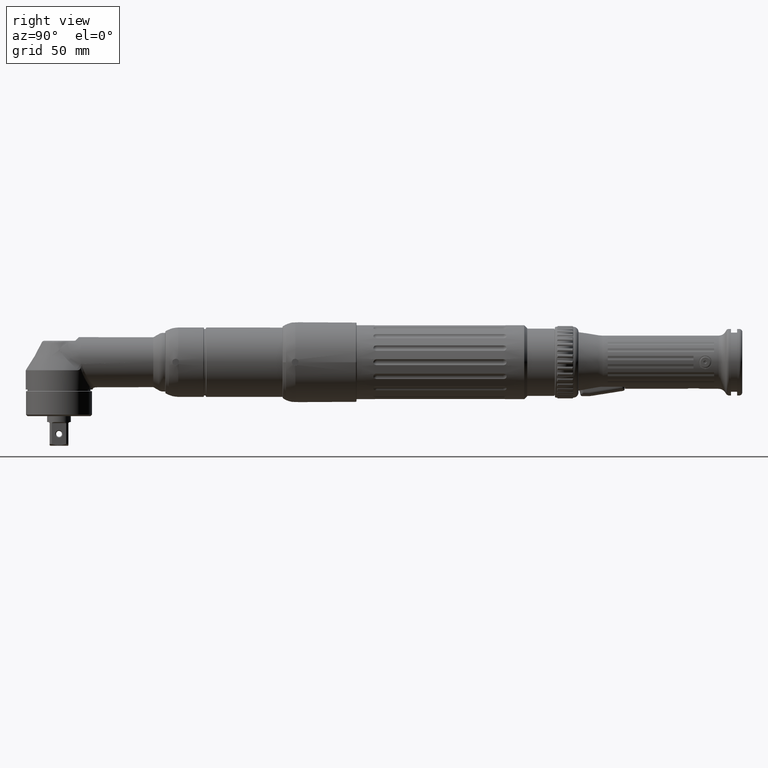
[diagram: clean part render]
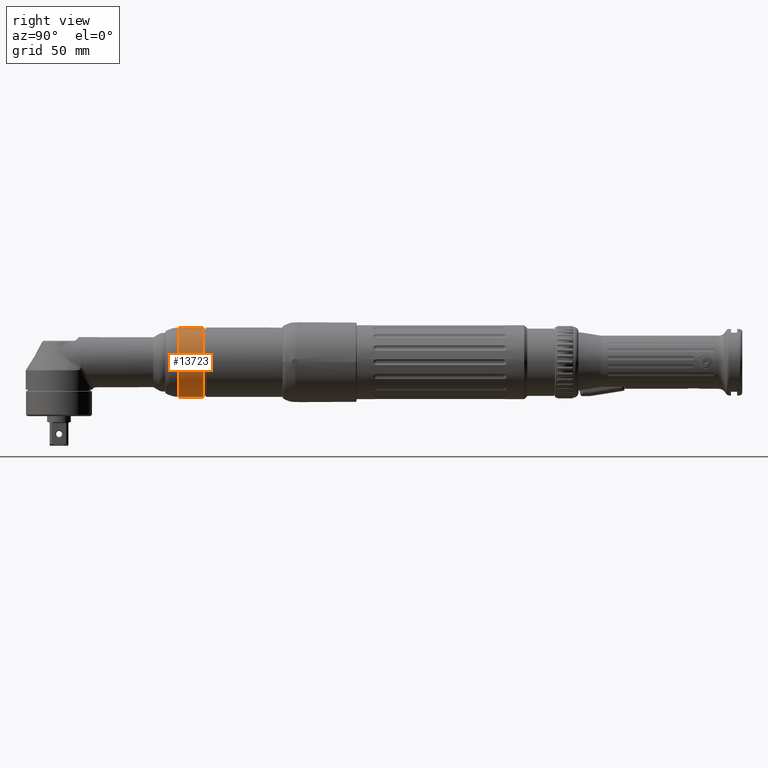
[diagram: same view with one face highlighted and labeled with its STEP entity id]
A machine part, right view. The second image highlights one B-rep face of the part: STEP entity #13723.
In plain terms, the highlighted cylindrical surface (bore or boss wall) has radius 23.5 mm, axis along (-0, 1, -0).
Its self-contained STEP definition (entity closure, byte-faithful):
#1785=B_SPLINE_CURVE_WITH_KNOTS('',3,(#20974,#20975,#20976,#20977,#20978,
#20979),.UNSPECIFIED.,.F.,.F.,(4,2,4),(-0.346790081006187,-0.260092696087759,
-0.182050218631956),.UNSPECIFIED.);
#1786=B_SPLINE_CURVE_WITH_KNOTS('',3,(#20980,#20981,#20982,#20983,#20984,
#20985),.UNSPECIFIED.,.F.,.F.,(4,2,4),(-0.511529943380419,-0.433487465924616,
-0.346790081006187),.UNSPECIFIED.);
#1788=B_SPLINE_CURVE_WITH_KNOTS('',3,(#21015,#21016,#21017,#21018,#21019,
#21020),.UNSPECIFIED.,.F.,.F.,(4,2,4),(-0.346790081006187,-0.260092696087759,
-0.182050218631957),.UNSPECIFIED.);
#1789=B_SPLINE_CURVE_WITH_KNOTS('',3,(#21022,#21023,#21024,#21025,#21026,
#21027),.UNSPECIFIED.,.F.,.F.,(4,2,4),(-0.511529943380418,-0.433487465924616,
-0.346790081006187),.UNSPECIFIED.);
#1792=B_SPLINE_CURVE_WITH_KNOTS('',3,(#21082,#21083,#21084,#21085,#21086,
#21087),.UNSPECIFIED.,.F.,.F.,(4,2,4),(-0.346790081006187,-0.260092696087759,
-0.182050218631957),.UNSPECIFIED.);
#1793=B_SPLINE_CURVE_WITH_KNOTS('',3,(#21088,#21089,#21090,#21091,#21092,
#21093),.UNSPECIFIED.,.F.,.F.,(4,2,4),(-0.511529943380418,-0.433487465924616,
-0.346790081006187),.UNSPECIFIED.);
#1795=B_SPLINE_CURVE_WITH_KNOTS('',3,(#21126,#21127,#21128,#21129,#21130,
#21131),.UNSPECIFIED.,.F.,.F.,(4,2,4),(-0.346790081006188,-0.260092696087759,
-0.182050218631957),.UNSPECIFIED.);
#1796=B_SPLINE_CURVE_WITH_KNOTS('',3,(#21132,#21133,#21134,#21135,#21136,
#21137),.UNSPECIFIED.,.F.,.F.,(4,2,4),(-0.511529943380418,-0.433487465924616,
-0.346790081006188),.UNSPECIFIED.);
#1916=CYLINDRICAL_SURFACE('',#14632,23.5);
#2201=FACE_BOUND('',#3364,.T.);
#2475=FACE_OUTER_BOUND('',#3363,.T.);
#3363=EDGE_LOOP('',(#8608,#8609,#8610,#8611,#8612,#8613,#8614,#8615,#8616,
#8617,#8618,#8619));
#3364=EDGE_LOOP('',(#8620));
#4489=CIRCLE('',#14621,23.5);
#4490=CIRCLE('',#14622,23.5);
#4491=CIRCLE('',#14623,23.5);
#4492=CIRCLE('',#14624,23.5);
#4496=CIRCLE('',#14633,23.5);
#5381=VERTEX_POINT('',#20943);
#5382=VERTEX_POINT('',#20944);
#5383=VERTEX_POINT('',#20973);
#5387=VERTEX_POINT('',#20996);
#5389=VERTEX_POINT('',#21014);
#5390=VERTEX_POINT('',#21021);
#5393=VERTEX_POINT('',#21051);
#5394=VERTEX_POINT('',#21052);
#5395=VERTEX_POINT('',#21081);
#5396=VERTEX_POINT('',#21095);
#5397=VERTEX_POINT('',#21096);
#5398=VERTEX_POINT('',#21125);
#5404=VERTEX_POINT('',#21187);
#6665=EDGE_CURVE('',#5383,#5381,#1785,.T.);
#6666=EDGE_CURVE('',#5382,#5383,#1786,.T.);
#6671=EDGE_CURVE('',#5389,#5387,#1788,.T.);
#6672=EDGE_CURVE('',#5390,#5389,#1789,.T.);
#6677=EDGE_CURVE('',#5395,#5393,#1792,.T.);
#6678=EDGE_CURVE('',#5394,#5395,#1793,.T.);
#6680=EDGE_CURVE('',#5398,#5396,#1795,.T.);
#6681=EDGE_CURVE('',#5397,#5398,#1796,.T.);
#6685=EDGE_CURVE('',#5390,#5381,#4489,.T.);
#6686=EDGE_CURVE('',#5382,#5393,#4490,.T.);
#6687=EDGE_CURVE('',#5394,#5396,#4491,.T.);
#6688=EDGE_CURVE('',#5397,#5387,#4492,.T.);
#6692=EDGE_CURVE('',#5404,#5404,#4496,.T.);
#8608=ORIENTED_EDGE('',*,*,#6688,.F.);
#8609=ORIENTED_EDGE('',*,*,#6681,.T.);
#8610=ORIENTED_EDGE('',*,*,#6680,.T.);
#8611=ORIENTED_EDGE('',*,*,#6687,.F.);
#8612=ORIENTED_EDGE('',*,*,#6678,.T.);
#8613=ORIENTED_EDGE('',*,*,#6677,.T.);
#8614=ORIENTED_EDGE('',*,*,#6686,.F.);
#8615=ORIENTED_EDGE('',*,*,#6666,.T.);
#8616=ORIENTED_EDGE('',*,*,#6665,.T.);
#8617=ORIENTED_EDGE('',*,*,#6685,.F.);
#8618=ORIENTED_EDGE('',*,*,#6672,.T.);
#8619=ORIENTED_EDGE('',*,*,#6671,.T.);
#8620=ORIENTED_EDGE('',*,*,#6692,.F.);
#13723=ADVANCED_FACE('',(#2475,#2201),#1916,.T.);
#14621=AXIS2_PLACEMENT_3D('',#21172,#16505,#16506);
#14622=AXIS2_PLACEMENT_3D('',#21173,#16507,#16508);
#14623=AXIS2_PLACEMENT_3D('',#21174,#16509,#16510);
#14624=AXIS2_PLACEMENT_3D('',#21175,#16511,#16512);
#14632=AXIS2_PLACEMENT_3D('',#21186,#16527,#16528);
#14633=AXIS2_PLACEMENT_3D('',#21188,#16529,#16530);
#16505=DIRECTION('center_axis',(3.46124277547592E-16,-1.,1.12588526286296E-18));
#16506=DIRECTION('ref_axis',(0.707106781186547,2.3844307900449E-16,-0.707106781186548));
#16507=DIRECTION('center_axis',(3.46124277547592E-16,-1.,1.12588526286296E-18));
#16508=DIRECTION('ref_axis',(0.707106781186547,2.3844307900449E-16,-0.707106781186548));
#16509=DIRECTION('center_axis',(3.46124277547592E-16,-1.,1.12588526286296E-18));
#16510=DIRECTION('ref_axis',(0.707106781186547,2.3844307900449E-16,-0.707106781186548));
#16511=DIRECTION('center_axis',(3.46124277547592E-16,-1.,1.12588526286296E-18));
#16512=DIRECTION('ref_axis',(0.707106781186547,2.3844307900449E-16,-0.707106781186548));
#16527=DIRECTION('center_axis',(-3.46124277547592E-16,1.,-1.12588526286296E-18));
#16528=DIRECTION('ref_axis',(-4.23019337988543E-16,1.24710048735305E-16,
-1.));
#16529=DIRECTION('center_axis',(-3.46124277547592E-16,1.,-1.12588526286296E-18));
#16530=DIRECTION('ref_axis',(3.61786998031175E-16,2.25694610214675E-18,
1.));
#20943=CARTESIAN_POINT('',(-1.56367712594626,80.6866872404908,-23.4479191794452));
#20944=CARTESIAN_POINT('',(1.56367712594622,80.6866872404908,-23.4479191794452));
#20973=CARTESIAN_POINT('',(-2.34011218331982E-14,81.3000000000001,-23.5));
#20974=CARTESIAN_POINT('Ctrl Pts',(-2.14411821630733E-14,81.3000000000001,
-23.5));
#20975=CARTESIAN_POINT('Ctrl Pts',(-0.288991283061449,81.3000000000001,
-23.5));
#20976=CARTESIAN_POINT('Ctrl Pts',(-0.597119438070671,81.2422071708595,
-23.4941232068965));
#20977=CARTESIAN_POINT('Ctrl Pts',(-1.13545525787978,81.0191449802081,-23.4739402612096));
#20978=CARTESIAN_POINT('Ctrl Pts',(-1.37072982928058,80.8655628887709,-23.4607863030462));
#20979=CARTESIAN_POINT('Ctrl Pts',(-1.56367712573371,80.6866872402605,-23.4479191794594));
#20980=CARTESIAN_POINT('Ctrl Pts',(1.56367712573367,80.6866872402605,-23.4479191794594));
#20981=CARTESIAN_POINT('Ctrl Pts',(1.37072982928054,80.8655628887709,-23.4607863030462));
#20982=CARTESIAN_POINT('Ctrl Pts',(1.13545525787974,81.0191449802081,-23.4739402612096));
#20983=CARTESIAN_POINT('Ctrl Pts',(0.597119438070625,81.2422071708595,-23.4941232068965));
#20984=CARTESIAN_POINT('Ctrl Pts',(0.288991283061403,81.3000000000001,-23.5));
#20985=CARTESIAN_POINT('Ctrl Pts',(-2.47024622979097E-14,81.3000000000001,
-23.5));
#20996=CARTESIAN_POINT('',(-23.4479191794452,80.6866872404907,1.56367712594624));
#21014=CARTESIAN_POINT('',(-23.5,81.3000000000001,4.81046796746673E-15));
#21015=CARTESIAN_POINT('Ctrl Pts',(-23.5,81.3000000000001,6.73072708679001E-15));
#21016=CARTESIAN_POINT('Ctrl Pts',(-23.5,81.3000000000001,0.288991283061434));
#21017=CARTESIAN_POINT('Ctrl Pts',(-23.4941232068965,81.2422071708595,0.597119438070653));
#21018=CARTESIAN_POINT('Ctrl Pts',(-23.4739402612096,81.0191449802081,1.13545525787976));
#21019=CARTESIAN_POINT('Ctrl Pts',(-23.4607863030462,80.8655628887709,1.37072982928057));
#21020=CARTESIAN_POINT('Ctrl Pts',(-23.4479191794594,80.6866872402605,1.5636771257337));
#21021=CARTESIAN_POINT('',(-23.4479191794452,80.6866872404907,-1.56367712594623));
#21022=CARTESIAN_POINT('Ctrl Pts',(-23.4479191794594,80.6866872402605,-1.56367712573368));
#21023=CARTESIAN_POINT('Ctrl Pts',(-23.4607863030462,80.8655628887709,-1.37072982928056));
#21024=CARTESIAN_POINT('Ctrl Pts',(-23.4739402612096,81.0191449802081,-1.13545525787975));
#21025=CARTESIAN_POINT('Ctrl Pts',(-23.4941232068965,81.2422071708595,-0.597119438070642));
#21026=CARTESIAN_POINT('Ctrl Pts',(-23.5,81.3000000000001,-0.288991283061422));
#21027=CARTESIAN_POINT('Ctrl Pts',(-23.5,81.3000000000001,5.55111512312578E-15));
#21051=CARTESIAN_POINT('',(23.4479191794452,80.6866872404908,-1.56367712594626));
#21052=CARTESIAN_POINT('',(23.4479191794452,80.6866872404908,1.56367712594622));
#21081=CARTESIAN_POINT('',(23.5,81.3000000000001,-2.08272808739874E-14));
#21082=CARTESIAN_POINT('Ctrl Pts',(23.5,81.3000000000001,-1.79023462720806E-14));
#21083=CARTESIAN_POINT('Ctrl Pts',(23.5,81.3000000000001,-0.288991283061446));
#21084=CARTESIAN_POINT('Ctrl Pts',(23.4941232068965,81.2422071708595,-0.597119438070667));
#21085=CARTESIAN_POINT('Ctrl Pts',(23.4739402612095,81.0191449802081,-1.13545525787978));
#21086=CARTESIAN_POINT('Ctrl Pts',(23.4607863030461,80.865562888771,-1.37072982928058));
#21087=CARTESIAN_POINT('Ctrl Pts',(23.4479191794593,80.6866872402605,-1.56367712573371));
#21088=CARTESIAN_POINT('Ctrl Pts',(23.4479191794593,80.6866872402605,1.56367712573367));
#21089=CARTESIAN_POINT('Ctrl Pts',(23.4607863030462,80.8655628887709,1.37072982928055));
#21090=CARTESIAN_POINT('Ctrl Pts',(23.4739402612095,81.0191449802081,1.13545525787974));
#21091=CARTESIAN_POINT('Ctrl Pts',(23.4941232068965,81.2422071708595,0.597119438070629));
#21092=CARTESIAN_POINT('Ctrl Pts',(23.5,81.3000000000001,0.288991283061408));
#21093=CARTESIAN_POINT('Ctrl Pts',(23.5,81.3000000000001,-1.90819582357449E-14));
#21095=CARTESIAN_POINT('',(1.56367712594623,80.6866872404908,23.4479191794452));
#21096=CARTESIAN_POINT('',(-1.56367712594623,80.6866872404908,23.4479191794452));
#21125=CARTESIAN_POINT('',(-6.41292969740397E-16,81.3000000000001,23.5));
#21126=CARTESIAN_POINT('Ctrl Pts',(-2.15105711021124E-15,81.3000000000001,
23.5));
#21127=CARTESIAN_POINT('Ctrl Pts',(0.288991283061425,81.3000000000001,23.5));
#21128=CARTESIAN_POINT('Ctrl Pts',(0.597119438070648,81.2422071708595,23.4941232068965));
#21129=CARTESIAN_POINT('Ctrl Pts',(1.13545525787976,81.0191449802081,23.4739402612095));
#21130=CARTESIAN_POINT('Ctrl Pts',(1.37072982928056,80.8655628887709,23.4607863030462));
#21131=CARTESIAN_POINT('Ctrl Pts',(1.56367712573369,80.6866872402605,23.4479191794593));
#21132=CARTESIAN_POINT('Ctrl Pts',(-1.56367712573369,80.6866872402605,23.4479191794593));
#21133=CARTESIAN_POINT('Ctrl Pts',(-1.37072982928056,80.8655628887709,23.4607863030462));
#21134=CARTESIAN_POINT('Ctrl Pts',(-1.13545525787976,81.0191449802081,23.4739402612095));
#21135=CARTESIAN_POINT('Ctrl Pts',(-0.597119438070649,81.2422071708595,
23.4941232068965));
#21136=CARTESIAN_POINT('Ctrl Pts',(-0.288991283061427,81.3000000000001,
23.5));
#21137=CARTESIAN_POINT('Ctrl Pts',(2.77555756156289E-16,81.3000000000001,
23.5));
#21172=CARTESIAN_POINT('Origin',(-1.32478849548195E-14,80.6866872409181,
-9.44667592246148E-15));
#21173=CARTESIAN_POINT('Origin',(-1.32478849548195E-14,80.6866872409181,
-9.44667592246148E-15));
#21174=CARTESIAN_POINT('Origin',(-1.32478849548195E-14,80.6866872409181,
-9.44667592246148E-15));
#21175=CARTESIAN_POINT('Origin',(-1.32478849548195E-14,80.6866872409181,
-9.44667592246148E-15));
#21186=CARTESIAN_POINT('Origin',(-1.566865960309E-14,87.680633650637,-9.45455030365343E-15));
#21187=CARTESIAN_POINT('',(-3.04472951184673E-14,97.5000000000001,-23.5));
#21188=CARTESIAN_POINT('Origin',(-1.90673806867384E-14,97.5000000000001,
-9.46560578351684E-15));